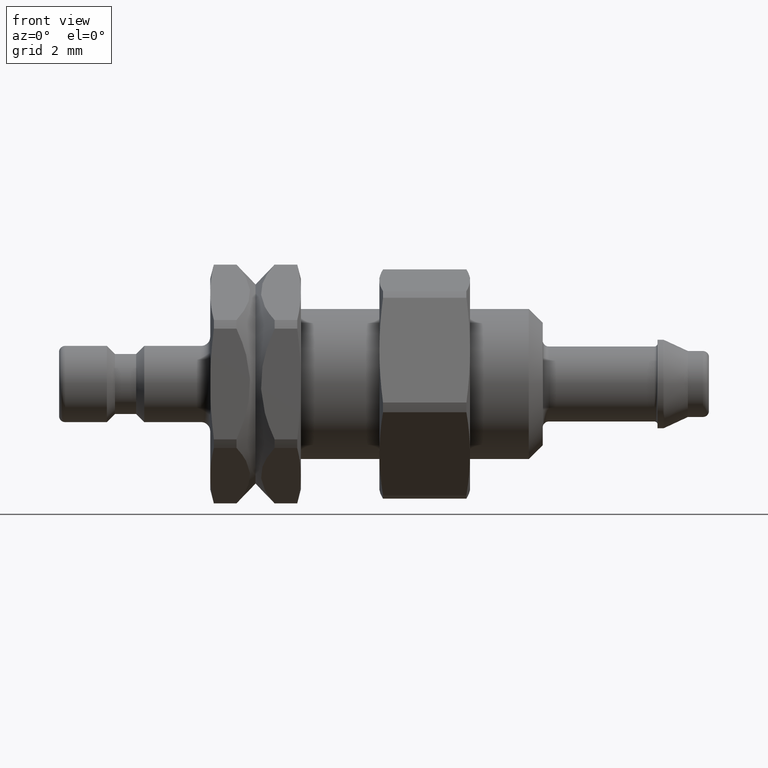
[diagram: clean part render]
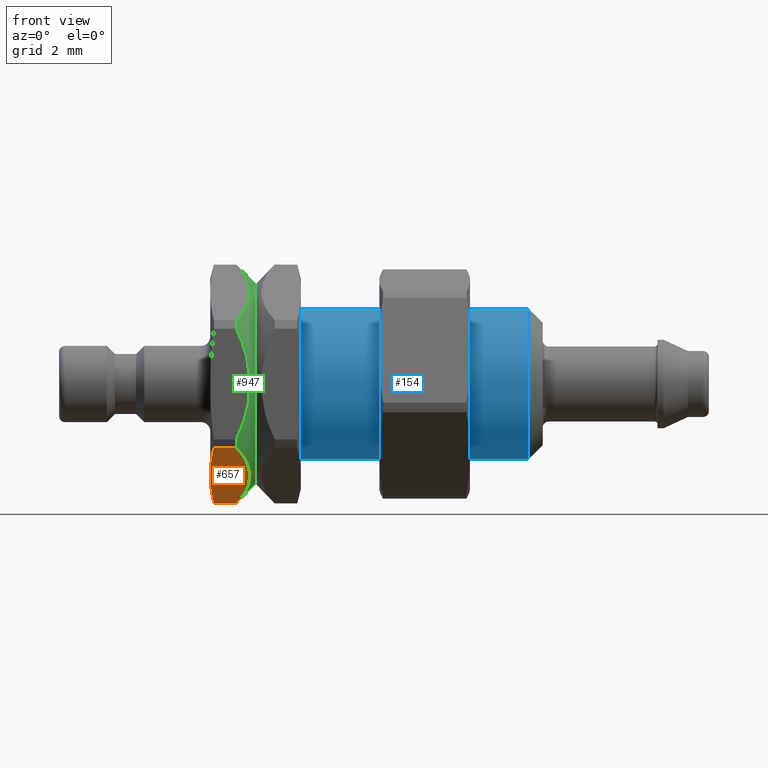
[diagram: same view with three faces highlighted in distinct colors, each labeled with its STEP entity id]
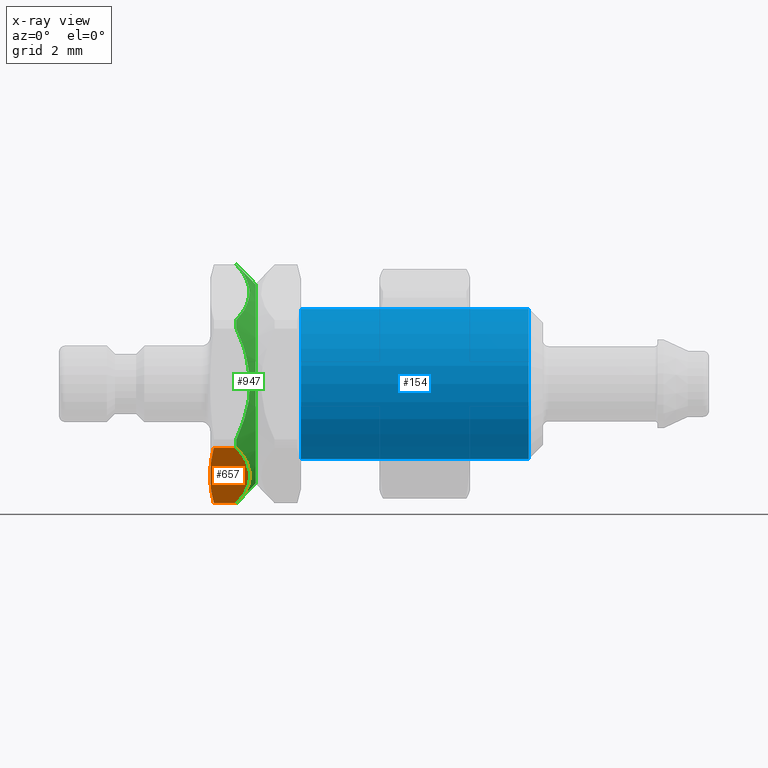
[diagram: x-ray of the same camera — body ghosted, the three highlighted faces saturated]
A machine part, front view with three faces highlighted in distinct colors.
The next image is the same camera in x-ray (body ghosted, the three faces saturated) — at least one of them is partly hidden behind the body in this view.
Their STEP definitions:

[orange] entity #657 — the highlighted planar face has unit normal (0, 0.5, 0.866).
#589=CARTESIAN_POINT('',(9.156977203165798,-1.750000000000002,-3.031088913245535));
#590=DIRECTION('',(2.401388E-016,0.500000000000000,0.866025403784438));
#591=DIRECTION('',(0.0,-0.866025403784438,0.500000000000000));
#592=AXIS2_PLACEMENT_3D('',#589,#590,#591);
#593=PLANE('',#592);
#594=CARTESIAN_POINT('',(5.120577136594005,-0.164321911610053,-3.946580584425564));
#595=VERTEX_POINT('',#594);
#596=CARTESIAN_POINT('',(5.0,-1.750000000000002,-3.031088913245534));
#597=VERTEX_POINT('',#596);
#598=CARTESIAN_POINT('',(5.120577136594005,-0.164321911610051,-3.946580584425564));
#599=CARTESIAN_POINT('',(5.0,-1.005050562501368,-3.461185671518031));
#600=CARTESIAN_POINT('',(5.0,-1.750000000000002,-3.031088913245534));
#608=(BOUNDED_CURVE()B_SPLINE_CURVE(2,(#598,#599,#600),.UNSPECIFIED.,.F.,.U.)B_SPLINE_CURVE_WITH_KNOTS((3,3),(0.0,0.183584795094288),.UNSPECIFIED.)CURVE()GEOMETRIC_REPRESENTATION_ITEM()RATIONAL_B_SPLINE_CURVE((1.0,1.031642241421796,1.0))REPRESENTATION_ITEM(''));
#609=EDGE_CURVE('',#595,#597,#608,.T.);
#610=ORIENTED_EDGE('',*,*,#609,.F.);
#611=CARTESIAN_POINT('',(5.869305609021942,-0.164321911610053,-3.946580584425564));
#612=VERTEX_POINT('',#611);
#613=CARTESIAN_POINT('',(5.869305609021943,-0.164321911610053,-3.946580584425564));
#614=DIRECTION('',(-1.0,0.0,0.0));
#615=VECTOR('',#614,0.748728472427938);
#616=LINE('',#613,#615);
#617=EDGE_CURVE('',#612,#595,#616,.T.);
#618=ORIENTED_EDGE('',*,*,#617,.F.);
#619=CARTESIAN_POINT('',(5.869305609021942,-3.335678088389950,-2.115597242065505));
#620=VERTEX_POINT('',#619);
#621=CARTESIAN_POINT('',(5.869305609021942,-3.335678088389949,-2.115597242065505));
#622=CARTESIAN_POINT('',(6.718039786237134,-1.750000000000000,-3.031088913245535));
#623=CARTESIAN_POINT('',(5.869305609021942,-0.164321911610052,-3.946580584425563));
#631=(BOUNDED_CURVE()B_SPLINE_CURVE(2,(#621,#622,#623),.UNSPECIFIED.,.F.,.U.)B_SPLINE_CURVE_WITH_KNOTS((3,3),(0.0,0.377094152699296),.UNSPECIFIED.)CURVE()GEOMETRIC_REPRESENTATION_ITEM()RATIONAL_B_SPLINE_CURVE((1.0,1.128571428571424,1.0))REPRESENTATION_ITEM(''));
#632=EDGE_CURVE('',#620,#612,#631,.T.);
#633=ORIENTED_EDGE('',*,*,#632,.F.);
#634=CARTESIAN_POINT('',(5.120577136594005,-3.335678088389950,-2.115597242065505));
#635=VERTEX_POINT('',#634);
#636=CARTESIAN_POINT('',(5.120577136594005,-3.335678088389950,-2.115597242065505));
#637=DIRECTION('',(1.0,0.0,0.0));
#638=VECTOR('',#637,0.748728472427938);
#639=LINE('',#636,#638);
#640=EDGE_CURVE('',#635,#620,#639,.T.);
#641=ORIENTED_EDGE('',*,*,#640,.F.);
#642=CARTESIAN_POINT('',(5.0,-1.750000000000002,-3.031088913245534));
#643=CARTESIAN_POINT('',(5.0,-2.494949437498641,-2.600992154973033));
#644=CARTESIAN_POINT('',(5.120577136594005,-3.335678088389951,-2.115597242065504));
#652=(BOUNDED_CURVE()B_SPLINE_CURVE(2,(#642,#643,#644),.UNSPECIFIED.,.F.,.U.)B_SPLINE_CURVE_WITH_KNOTS((3,3),(0.183584795094288,0.367169590188576),.UNSPECIFIED.)CURVE()GEOMETRIC_REPRESENTATION_ITEM()RATIONAL_B_SPLINE_CURVE((1.0,1.031642241421791,1.0))REPRESENTATION_ITEM(''));
#653=EDGE_CURVE('',#597,#635,#652,.T.);
#654=ORIENTED_EDGE('',*,*,#653,.F.);
#655=EDGE_LOOP('',(#610,#618,#633,#641,#654));
#656=FACE_OUTER_BOUND('',#655,.T.);
#657=ADVANCED_FACE('',(#656),#593,.F.);

[blue] entity #154 — the highlighted cylindrical surface (bore or boss wall) has radius 2.5 mm, axis along (1, 0, 0).
#112=CARTESIAN_POINT('',(15.539999999999999,2.500000000000000,3.061617E-016));
#113=VERTEX_POINT('',#112);
#114=CARTESIAN_POINT('',(15.539999999999999,0.0,0.0));
#115=DIRECTION('',(1.0,0.0,0.0));
#116=DIRECTION('',(0.0,-1.0,0.0));
#117=AXIS2_PLACEMENT_3D('',#114,#115,#116);
#118=CIRCLE('',#117,2.500000000000000);
#119=EDGE_CURVE('',#113,#113,#118,.T.);
#135=CARTESIAN_POINT('',(11.999999999999996,0.0,0.0));
#136=DIRECTION('',(1.0,0.0,0.0));
#137=DIRECTION('',(0.0,1.0,0.0));
#138=AXIS2_PLACEMENT_3D('',#135,#136,#137);
#139=CYLINDRICAL_SURFACE('',#138,2.500000000000000);
#140=CARTESIAN_POINT('',(7.999999999999998,2.500000000000000,0.0));
#141=VERTEX_POINT('',#140);
#142=CARTESIAN_POINT('',(7.999999999999998,0.0,0.0));
#143=DIRECTION('',(1.0,0.0,0.0));
#144=DIRECTION('',(0.0,1.0,0.0));
#145=AXIS2_PLACEMENT_3D('',#142,#143,#144);
#146=CIRCLE('',#145,2.500000000000000);
#147=EDGE_CURVE('',#141,#141,#146,.T.);
#148=ORIENTED_EDGE('',*,*,#147,.T.);
#149=EDGE_LOOP('',(#148));
#150=FACE_OUTER_BOUND('',#149,.T.);
#151=ORIENTED_EDGE('',*,*,#119,.F.);
#152=EDGE_LOOP('',(#151));
#153=FACE_BOUND('',#152,.T.);
#154=ADVANCED_FACE('',(#150,#153),#139,.T.);

[green] entity #947 — the highlighted conical surface has half-angle 45 deg.
#542=CARTESIAN_POINT('',(5.869305609021942,3.335678088389946,-2.115597242065511));
#543=VERTEX_POINT('',#542);
#550=CARTESIAN_POINT('',(5.869305609021942,0.164321911610048,-3.946580584425564));
#551=VERTEX_POINT('',#550);
#552=CARTESIAN_POINT('',(5.869305609021942,0.164321911610050,-3.946580584425563));
#553=CARTESIAN_POINT('',(6.718039786237132,1.749999999999999,-3.031088913245537));
#554=CARTESIAN_POINT('',(5.869305609021942,3.335678088389946,-2.115597242065511));
#562=(BOUNDED_CURVE()B_SPLINE_CURVE(2,(#552,#553,#554),.UNSPECIFIED.,.F.,.U.)B_SPLINE_CURVE_WITH_KNOTS((3,3),(0.0,0.377094152699296),.UNSPECIFIED.)CURVE()GEOMETRIC_REPRESENTATION_ITEM()RATIONAL_B_SPLINE_CURVE((1.0,1.128571428571430,1.0))REPRESENTATION_ITEM(''));
#563=EDGE_CURVE('',#551,#543,#562,.T.);
#611=CARTESIAN_POINT('',(5.869305609021942,-0.164321911610053,-3.946580584425564));
#612=VERTEX_POINT('',#611);
#619=CARTESIAN_POINT('',(5.869305609021942,-3.335678088389950,-2.115597242065505));
#620=VERTEX_POINT('',#619);
#621=CARTESIAN_POINT('',(5.869305609021942,-3.335678088389949,-2.115597242065505));
#622=CARTESIAN_POINT('',(6.718039786237134,-1.750000000000000,-3.031088913245535));
#623=CARTESIAN_POINT('',(5.869305609021942,-0.164321911610052,-3.946580584425563));
#631=(BOUNDED_CURVE()B_SPLINE_CURVE(2,(#621,#622,#623),.UNSPECIFIED.,.F.,.U.)B_SPLINE_CURVE_WITH_KNOTS((3,3),(0.0,0.377094152699296),.UNSPECIFIED.)CURVE()GEOMETRIC_REPRESENTATION_ITEM()RATIONAL_B_SPLINE_CURVE((1.0,1.128571428571424,1.0))REPRESENTATION_ITEM(''));
#632=EDGE_CURVE('',#620,#612,#631,.T.);
#680=CARTESIAN_POINT('',(5.869305609021942,-3.500000000000000,-1.830983342360056));
#681=VERTEX_POINT('',#680);
#688=CARTESIAN_POINT('',(5.869305609021942,-3.499999999999999,1.830983342360057));
#689=VERTEX_POINT('',#688);
#690=CARTESIAN_POINT('',(5.869305609021942,-3.500000000000000,1.830983342360055));
#691=CARTESIAN_POINT('',(6.718039786237132,-3.500000000000000,1.271838E-015));
#692=CARTESIAN_POINT('',(5.869305609021942,-3.500000000000001,-1.830983342360053));
#700=(BOUNDED_CURVE()B_SPLINE_CURVE(2,(#690,#691,#692),.UNSPECIFIED.,.F.,.U.)B_SPLINE_CURVE_WITH_KNOTS((3,3),(0.0,0.377094152699296),.UNSPECIFIED.)CURVE()GEOMETRIC_REPRESENTATION_ITEM()RATIONAL_B_SPLINE_CURVE((1.0,1.128571428571430,1.0))REPRESENTATION_ITEM(''));
#701=EDGE_CURVE('',#689,#681,#700,.T.);
#749=CARTESIAN_POINT('',(5.869305609021942,-3.335678088389948,2.115597242065507));
#750=VERTEX_POINT('',#749);
#757=CARTESIAN_POINT('',(5.869305609021942,-0.164321911610050,3.946580584425563));
#758=VERTEX_POINT('',#757);
#759=CARTESIAN_POINT('',(5.869305609021942,-0.164321911610049,3.946580584425563));
#760=CARTESIAN_POINT('',(6.718039786237134,-1.749999999999999,3.031088913245535));
#761=CARTESIAN_POINT('',(5.869305609021942,-3.335678088389948,2.115597242065507));
#769=(BOUNDED_CURVE()B_SPLINE_CURVE(2,(#759,#760,#761),.UNSPECIFIED.,.F.,.U.)B_SPLINE_CURVE_WITH_KNOTS((3,3),(0.0,0.377094152699296),.UNSPECIFIED.)CURVE()GEOMETRIC_REPRESENTATION_ITEM()RATIONAL_B_SPLINE_CURVE((1.0,1.128571428571430,1.0))REPRESENTATION_ITEM(''));
#770=EDGE_CURVE('',#758,#750,#769,.T.);
#818=CARTESIAN_POINT('',(5.869305609021942,0.164321911610050,3.946580584425563));
#819=VERTEX_POINT('',#818);
#826=CARTESIAN_POINT('',(5.869305609021942,3.335678088389949,2.115597242065505));
#827=VERTEX_POINT('',#826);
#828=CARTESIAN_POINT('',(5.869305609021942,3.335678088389948,2.115597242065507));
#829=CARTESIAN_POINT('',(6.718039786237133,1.750000000000001,3.031088913245535));
#830=CARTESIAN_POINT('',(5.869305609021942,0.164321911610052,3.946580584425563));
#838=(BOUNDED_CURVE()B_SPLINE_CURVE(2,(#828,#829,#830),.UNSPECIFIED.,.F.,.U.)B_SPLINE_CURVE_WITH_KNOTS((3,3),(0.0,0.377094152699296),.UNSPECIFIED.)CURVE()GEOMETRIC_REPRESENTATION_ITEM()RATIONAL_B_SPLINE_CURVE((1.0,1.128571428571421,1.0))REPRESENTATION_ITEM(''));
#839=EDGE_CURVE('',#827,#819,#838,.T.);
#865=CARTESIAN_POINT('',(6.184652804510971,0.0,0.0));
#866=DIRECTION('',(-1.0,0.0,0.0));
#867=DIRECTION('',(0.0,1.0,0.0));
#868=AXIS2_PLACEMENT_3D('',#865,#866,#867);
#869=CONICAL_SURFACE('',#868,3.634652804510972,44.999999999999950);
#870=CARTESIAN_POINT('',(6.500000000000000,3.319305609021943,0.0));
#871=VERTEX_POINT('',#870);
#872=CARTESIAN_POINT('',(6.499999999999999,0.0,0.0));
#873=DIRECTION('',(1.0,0.0,0.0));
#874=DIRECTION('',(0.0,1.0,0.0));
#875=AXIS2_PLACEMENT_3D('',#872,#873,#874);
#876=CIRCLE('',#875,3.319305609021943);
#877=EDGE_CURVE('',#871,#871,#876,.T.);
#878=ORIENTED_EDGE('',*,*,#877,.F.);
#879=EDGE_LOOP('',(#878));
#880=FACE_OUTER_BOUND('',#879,.T.);
#881=ORIENTED_EDGE('',*,*,#563,.T.);
#882=CARTESIAN_POINT('',(5.869305609021942,3.500000000000000,-1.830983342360057));
#883=VERTEX_POINT('',#882);
#884=CARTESIAN_POINT('',(5.869305609021942,0.0,0.0));
#885=DIRECTION('',(1.0,0.0,0.0));
#886=DIRECTION('',(0.0,1.0,0.0));
#887=AXIS2_PLACEMENT_3D('',#884,#885,#886);
#888=CIRCLE('',#887,3.950000000000000);
#889=EDGE_CURVE('',#543,#883,#888,.T.);
#890=ORIENTED_EDGE('',*,*,#889,.T.);
#891=CARTESIAN_POINT('',(5.869305609021942,3.500000000000000,1.830983342360057));
#892=VERTEX_POINT('',#891);
#893=CARTESIAN_POINT('',(5.869305609021942,3.499999999999999,-1.830983342360057));
#894=CARTESIAN_POINT('',(6.718039786237134,3.499999999999999,0.0));
#895=CARTESIAN_POINT('',(5.869305609021942,3.499999999999999,1.830983342360057));
#903=(BOUNDED_CURVE()B_SPLINE_CURVE(2,(#893,#894,#895),.UNSPECIFIED.,.F.,.U.)B_SPLINE_CURVE_WITH_KNOTS((3,3),(0.0,0.377094152699296),.UNSPECIFIED.)CURVE()GEOMETRIC_REPRESENTATION_ITEM()RATIONAL_B_SPLINE_CURVE((1.0,1.128571428571430,1.0))REPRESENTATION_ITEM(''));
#904=EDGE_CURVE('',#883,#892,#903,.T.);
#905=ORIENTED_EDGE('',*,*,#904,.T.);
#906=CARTESIAN_POINT('',(5.869305609021942,0.0,0.0));
#907=DIRECTION('',(1.0,0.0,0.0));
#908=DIRECTION('',(0.0,1.0,0.0));
#909=AXIS2_PLACEMENT_3D('',#906,#907,#908);
#910=CIRCLE('',#909,3.950000000000000);
#911=EDGE_CURVE('',#892,#827,#910,.T.);
#912=ORIENTED_EDGE('',*,*,#911,.T.);
#913=ORIENTED_EDGE('',*,*,#839,.T.);
#914=CARTESIAN_POINT('',(5.869305609021942,0.0,0.0));
#915=DIRECTION('',(1.0,0.0,0.0));
#916=DIRECTION('',(0.0,1.0,0.0));
#917=AXIS2_PLACEMENT_3D('',#914,#915,#916);
#918=CIRCLE('',#917,3.950000000000000);
#919=EDGE_CURVE('',#819,#758,#918,.T.);
#920=ORIENTED_EDGE('',*,*,#919,.T.);
#921=ORIENTED_EDGE('',*,*,#770,.T.);
#922=CARTESIAN_POINT('',(5.869305609021942,0.0,0.0));
#923=DIRECTION('',(1.0,0.0,0.0));
#924=DIRECTION('',(0.0,1.0,0.0));
#925=AXIS2_PLACEMENT_3D('',#922,#923,#924);
#926=CIRCLE('',#925,3.950000000000000);
#927=EDGE_CURVE('',#750,#689,#926,.T.);
#928=ORIENTED_EDGE('',*,*,#927,.T.);
#929=ORIENTED_EDGE('',*,*,#701,.T.);
#930=CARTESIAN_POINT('',(5.869305609021942,0.0,0.0));
#931=DIRECTION('',(1.0,0.0,0.0));
#932=DIRECTION('',(0.0,1.0,0.0));
#933=AXIS2_PLACEMENT_3D('',#930,#931,#932);
#934=CIRCLE('',#933,3.950000000000000);
#935=EDGE_CURVE('',#681,#620,#934,.T.);
#936=ORIENTED_EDGE('',*,*,#935,.T.);
#937=ORIENTED_EDGE('',*,*,#632,.T.);
#938=CARTESIAN_POINT('',(5.869305609021942,0.0,0.0));
#939=DIRECTION('',(1.0,0.0,0.0));
#940=DIRECTION('',(0.0,1.0,0.0));
#941=AXIS2_PLACEMENT_3D('',#938,#939,#940);
#942=CIRCLE('',#941,3.950000000000000);
#943=EDGE_CURVE('',#612,#551,#942,.T.);
#944=ORIENTED_EDGE('',*,*,#943,.T.);
#945=EDGE_LOOP('',(#881,#890,#905,#912,#913,#920,#921,#928,#929,#936,#937,#944));
#946=FACE_BOUND('',#945,.T.);
#947=ADVANCED_FACE('',(#880,#946),#869,.T.);